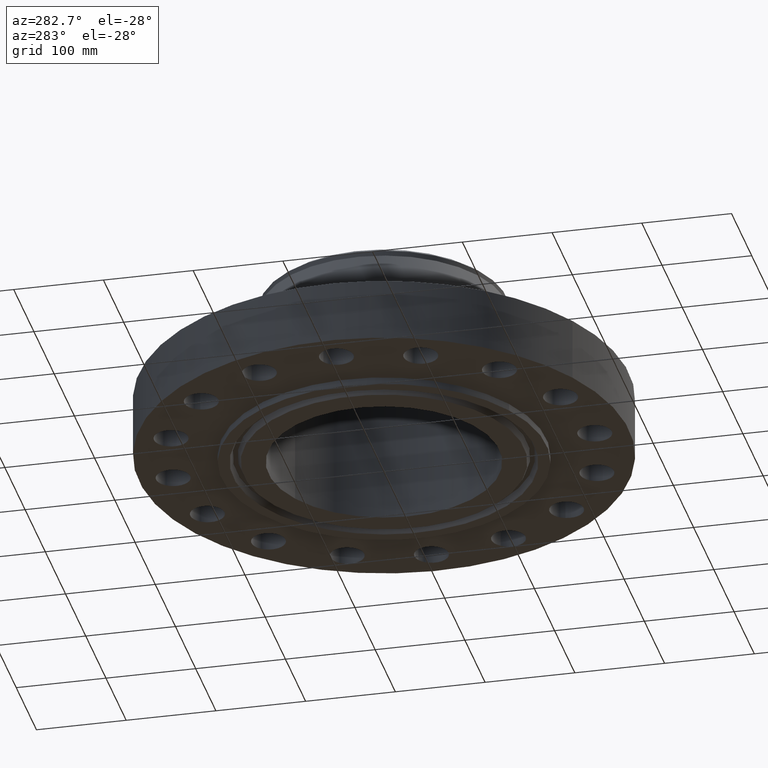
[diagram: clean part render]
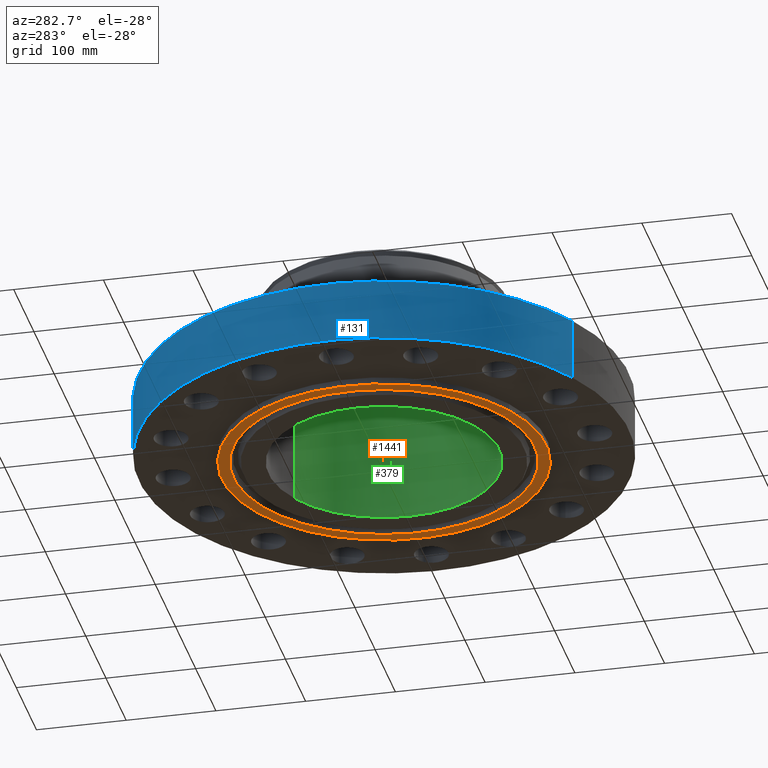
[diagram: same view with three faces highlighted in distinct colors, each labeled with its STEP entity id]
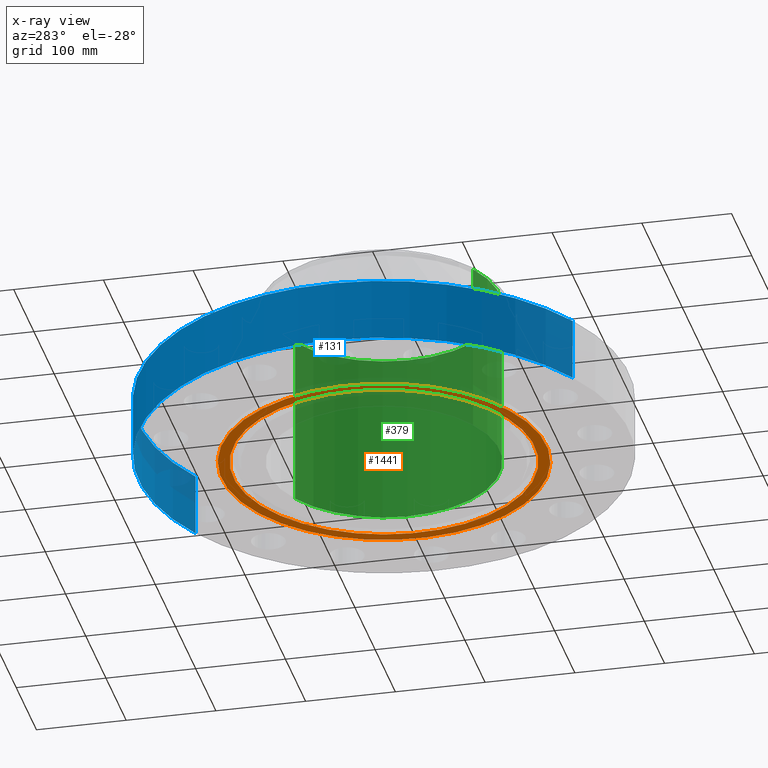
[diagram: x-ray of the same camera — body ghosted, the three highlighted faces saturated]
A machine part, auxiliary view with three faces highlighted in distinct colors.
The next image is the same camera in x-ray (body ghosted, the three faces saturated) — at least one of them is partly hidden behind the body in this view.
Their STEP definitions:

[orange] entity #1441 — the highlighted planar face has unit normal (0, 0, -1).
#431=AXIS2_PLACEMENT_3D('Circle Axis2P3D',#429,#430,$) ;
#466=AXIS2_PLACEMENT_3D('Circle Axis2P3D',#464,#465,$) ;
#1417=AXIS2_PLACEMENT_3D('Plane Axis2P3D',#1414,#1415,#1416) ;
#1425=AXIS2_PLACEMENT_3D('Circle Axis2P3D',#1423,#1424,$) ;
#1434=AXIS2_PLACEMENT_3D('Circle Axis2P3D',#1432,#1433,$) ;
#429=CARTESIAN_POINT('Axis2P3D Location',(0.,0.,-0.312500000001)) ;
#433=CARTESIAN_POINT('Vertex',(-3.41590696257,-6.25277575349,-0.312500000001)) ;
#435=CARTESIAN_POINT('Vertex',(3.41590696257,6.25277575349,-0.312500000001)) ;
#464=CARTESIAN_POINT('Axis2P3D Location',(0.,0.,-0.312500000001)) ;
#1414=CARTESIAN_POINT('Axis2P3D Location',(0.,5.06800000002,-0.312500000001)) ;
#1423=CARTESIAN_POINT('Axis2P3D Location',(-8.39223703654E-016,-1.1189649382E-015,-0.312500000001)) ;
#1427=CARTESIAN_POINT('Vertex',(3.16871515486,-5.80029418458,-0.312500000001)) ;
#1429=CARTESIAN_POINT('Vertex',(-3.16871515486,5.80029418458,-0.312500000001)) ;
#1432=CARTESIAN_POINT('Axis2P3D Location',(-2.79741234551E-016,-1.1189649382E-015,-0.312500000001)) ;
#430=DIRECTION('Axis2P3D Direction',(0.,0.,-0.0393700787402)) ;
#465=DIRECTION('Axis2P3D Direction',(0.,0.,-0.0393700787402)) ;
#1415=DIRECTION('Axis2P3D Direction',(0.,0.,-0.0393700787402)) ;
#1416=DIRECTION('Axis2P3D XDirection',(0.0393700787402,0.,0.)) ;
#1424=DIRECTION('Axis2P3D Direction',(0.,0.,-0.0393700787402)) ;
#1433=DIRECTION('Axis2P3D Direction',(0.,0.,-0.0393700787402)) ;
#1420=ORIENTED_EDGE('',*,*,#437,.T.) ;
#1421=ORIENTED_EDGE('',*,*,#468,.T.) ;
#1438=ORIENTED_EDGE('',*,*,#1431,.F.) ;
#1439=ORIENTED_EDGE('',*,*,#1436,.F.) ;
#1440=FACE_BOUND('',#1437,.T.) ;
#1441=ADVANCED_FACE('PartBody',(#1422,#1440),#1418,.T.) ;
#432=CIRCLE('generated circle',#431,7.12500000003) ;
#467=CIRCLE('generated circle',#466,7.12500000003) ;
#1426=CIRCLE('generated circle',#1425,6.60940000003) ;
#1435=CIRCLE('generated circle',#1434,6.60940000003) ;
#437=EDGE_CURVE('',#434,#436,#432,.T.) ;
#468=EDGE_CURVE('',#436,#434,#467,.T.) ;
#1431=EDGE_CURVE('',#1428,#1430,#1426,.T.) ;
#1436=EDGE_CURVE('',#1430,#1428,#1435,.T.) ;
#1419=EDGE_LOOP('',(#1420,#1421)) ;
#1437=EDGE_LOOP('',(#1438,#1439)) ;
#1422=FACE_OUTER_BOUND('',#1419,.T.) ;
#1418=PLANE('',#1417) ;
#434=VERTEX_POINT('',#433) ;
#436=VERTEX_POINT('',#435) ;
#1428=VERTEX_POINT('',#1427) ;
#1430=VERTEX_POINT('',#1429) ;

[blue] entity #131 — the highlighted cylindrical surface (partial cylindrical patch) has radius 273.05 mm, axis along (0, 0, -1).
#95=AXIS2_PLACEMENT_3D('Cylinder Axis2P3D',#92,#93,#94) ;
#99=AXIS2_PLACEMENT_3D('Circle Axis2P3D',#97,#98,$) ;
#115=AXIS2_PLACEMENT_3D('Circle Axis2P3D',#113,#114,$) ;
#92=CARTESIAN_POINT('Axis2P3D Location',(0.,0.,3.46875000001)) ;
#97=CARTESIAN_POINT('Axis2P3D Location',(0.,0.,1.1189649382E-015)) ;
#101=CARTESIAN_POINT('Vertex',(-5.15382454002,-9.43401254036,1.1189649382E-015)) ;
#103=CARTESIAN_POINT('Vertex',(5.15382454002,9.43401254036,1.1189649382E-015)) ;
#106=CARTESIAN_POINT('Line Origine',(-5.15382454002,-9.43401254036,1.37500000001)) ;
#110=CARTESIAN_POINT('Vertex',(-5.15382454002,-9.43401254036,2.75000000001)) ;
#113=CARTESIAN_POINT('Axis2P3D Location',(0.,0.,2.75000000001)) ;
#117=CARTESIAN_POINT('Vertex',(5.15382454002,9.43401254036,2.75000000001)) ;
#120=CARTESIAN_POINT('Line Origine',(5.15382454002,9.43401254036,1.37500000001)) ;
#93=DIRECTION('Axis2P3D Direction',(0.,0.,-0.0393700787402)) ;
#94=DIRECTION('Axis2P3D XDirection',(0.0188750212049,0.0345504945626,0.)) ;
#98=DIRECTION('Axis2P3D Direction',(0.,0.,-0.0393700787402)) ;
#107=DIRECTION('Vector Direction',(0.,0.,-0.0393700787402)) ;
#114=DIRECTION('Axis2P3D Direction',(0.,0.,-0.0393700787402)) ;
#121=DIRECTION('Vector Direction',(0.,0.,-0.0393700787402)) ;
#108=VECTOR('Line Direction',#107,0.0393700787402) ;
#122=VECTOR('Line Direction',#121,0.0393700787402) ;
#126=ORIENTED_EDGE('',*,*,#105,.F.) ;
#127=ORIENTED_EDGE('',*,*,#112,.T.) ;
#128=ORIENTED_EDGE('',*,*,#119,.T.) ;
#129=ORIENTED_EDGE('',*,*,#124,.F.) ;
#131=ADVANCED_FACE('PartBody',(#130),#96,.T.) ;
#100=CIRCLE('generated circle',#99,10.75) ;
#116=CIRCLE('generated circle',#115,10.75) ;
#96=CYLINDRICAL_SURFACE('generated cylinder',#95,10.75) ;
#105=EDGE_CURVE('',#102,#104,#100,.T.) ;
#112=EDGE_CURVE('',#102,#111,#109,.F.) ;
#119=EDGE_CURVE('',#111,#118,#116,.T.) ;
#124=EDGE_CURVE('',#104,#118,#123,.F.) ;
#125=EDGE_LOOP('',(#126,#127,#128,#129)) ;
#130=FACE_OUTER_BOUND('',#125,.T.) ;
#109=LINE('Line',#106,#108) ;
#123=LINE('Line',#120,#122) ;
#102=VERTEX_POINT('',#101) ;
#104=VERTEX_POINT('',#103) ;
#111=VERTEX_POINT('',#110) ;
#118=VERTEX_POINT('',#117) ;

[green] entity #379 — the highlighted cylindrical surface (partial cylindrical patch) has radius 128.727 mm, axis along (0, 0, -1).
#343=AXIS2_PLACEMENT_3D('Cylinder Axis2P3D',#340,#341,#342) ;
#347=AXIS2_PLACEMENT_3D('Circle Axis2P3D',#345,#346,$) ;
#363=AXIS2_PLACEMENT_3D('Circle Axis2P3D',#361,#362,$) ;
#340=CARTESIAN_POINT('Axis2P3D Location',(0.,0.,3.46875000001)) ;
#345=CARTESIAN_POINT('Axis2P3D Location',(0.,0.,7.25000000003)) ;
#349=CARTESIAN_POINT('Vertex',(2.42972862966,4.44758842368,7.25000000003)) ;
#351=CARTESIAN_POINT('Vertex',(-2.42972862966,-4.44758842368,7.25000000003)) ;
#354=CARTESIAN_POINT('Line Origine',(2.42972862966,4.44758842368,3.46875000001)) ;
#358=CARTESIAN_POINT('Vertex',(2.42972862966,4.44758842368,-0.312500000001)) ;
#361=CARTESIAN_POINT('Axis2P3D Location',(0.,0.,-0.312500000001)) ;
#365=CARTESIAN_POINT('Vertex',(-2.42972862966,-4.44758842368,-0.312500000001)) ;
#368=CARTESIAN_POINT('Line Origine',(-2.42972862966,-4.44758842368,3.46875000001)) ;
#341=DIRECTION('Axis2P3D Direction',(0.,0.,-0.0393700787402)) ;
#342=DIRECTION('Axis2P3D XDirection',(-0.0188750212049,-0.0345504945626,0.)) ;
#346=DIRECTION('Axis2P3D Direction',(0.,0.,-0.0393700787402)) ;
#355=DIRECTION('Vector Direction',(0.,0.,-0.0393700787402)) ;
#362=DIRECTION('Axis2P3D Direction',(0.,0.,-0.0393700787402)) ;
#369=DIRECTION('Vector Direction',(0.,0.,-0.0393700787402)) ;
#356=VECTOR('Line Direction',#355,0.0393700787402) ;
#370=VECTOR('Line Direction',#369,0.0393700787402) ;
#374=ORIENTED_EDGE('',*,*,#353,.F.) ;
#375=ORIENTED_EDGE('',*,*,#360,.T.) ;
#376=ORIENTED_EDGE('',*,*,#367,.T.) ;
#377=ORIENTED_EDGE('',*,*,#372,.F.) ;
#379=ADVANCED_FACE('PartBody',(#378),#344,.F.) ;
#348=CIRCLE('generated circle',#347,5.06800000002) ;
#364=CIRCLE('generated circle',#363,5.06800000002) ;
#344=CYLINDRICAL_SURFACE('generated cylinder',#343,5.06800000002) ;
#353=EDGE_CURVE('',#350,#352,#348,.T.) ;
#360=EDGE_CURVE('',#350,#359,#357,.T.) ;
#367=EDGE_CURVE('',#359,#366,#364,.T.) ;
#372=EDGE_CURVE('',#352,#366,#371,.T.) ;
#373=EDGE_LOOP('',(#374,#375,#376,#377)) ;
#378=FACE_OUTER_BOUND('',#373,.T.) ;
#357=LINE('Line',#354,#356) ;
#371=LINE('Line',#368,#370) ;
#350=VERTEX_POINT('',#349) ;
#352=VERTEX_POINT('',#351) ;
#359=VERTEX_POINT('',#358) ;
#366=VERTEX_POINT('',#365) ;